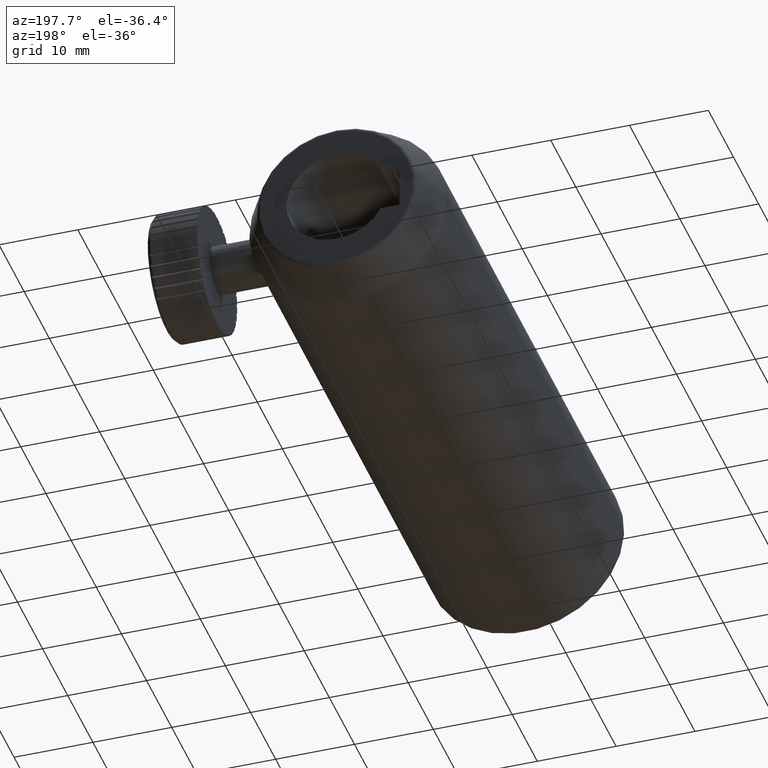
[diagram: clean part render]
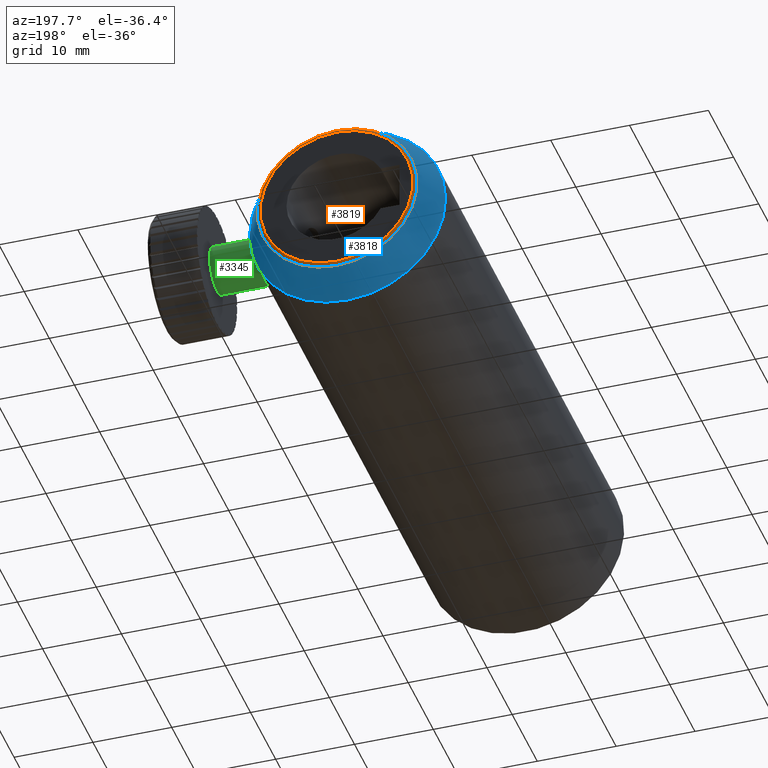
[diagram: same view with three faces highlighted in distinct colors, each labeled with its STEP entity id]
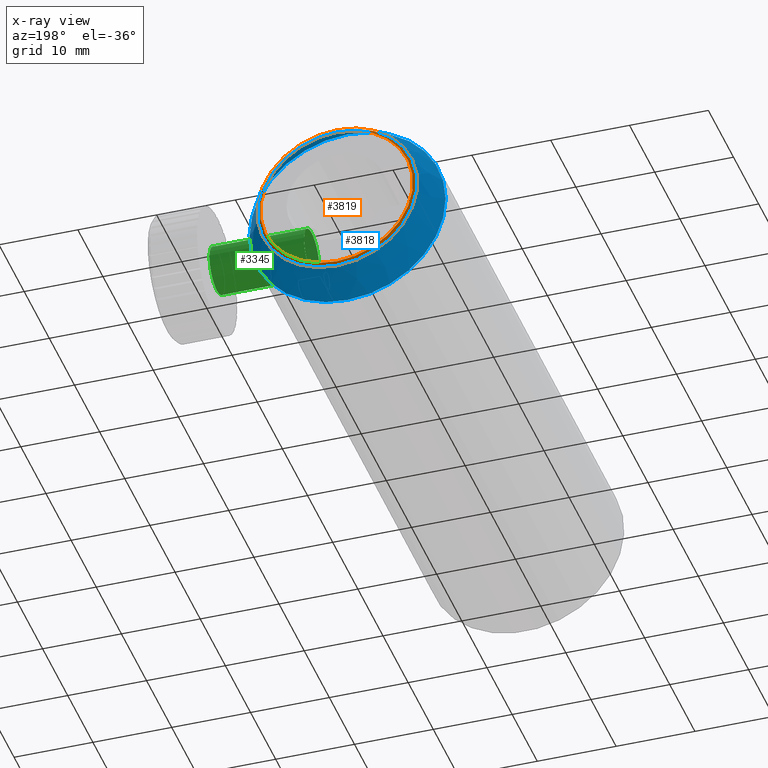
[diagram: x-ray of the same camera — body ghosted, the three highlighted faces saturated]
A machine part, auxiliary view with three faces highlighted in distinct colors.
The next image is the same camera in x-ray (body ghosted, the three faces saturated) — at least one of them is partly hidden behind the body in this view.
Their STEP definitions:

[orange] entity #3819 — the highlighted toroidal blend (fillet) surface has major radius 9.7058 mm and minor (blend) radius 0.5 mm.
#524 = CIRCLE ( 'NONE', #3723, 10.14287696356149300 ) ;
#527 = CIRCLE ( 'NONE', #3724, 9.705798325500721200 ) ;
#1116 = DIRECTION ( 'NONE',  ( 0.0000000000000000000, 1.000000000000000000, 0.0000000000000000000 ) ) ;
#1118 = CARTESIAN_POINT ( 'NONE',  ( -6.149801035848838600, 68.58755540261930200, -3.686287386450715100E-015 ) ) ;
#1120 = DIRECTION ( 'NONE',  ( 0.0000000000000000000, 0.0000000000000000000, 1.000000000000000000 ) ) ;
#1255 = CARTESIAN_POINT ( 'NONE',  ( -6.149801035848838600, 68.83037686820863100, 10.14287696356148900 ) ) ;
#1256 = CARTESIAN_POINT ( 'NONE',  ( -6.149801035848838600, 69.08755540261930200, 9.705798325500717600 ) ) ;
#1819 = ORIENTED_EDGE ( 'NONE', *, *, #2185, .F. ) ;
#1820 = ORIENTED_EDGE ( 'NONE', *, *, #2186, .F. ) ;
#2185 = EDGE_CURVE ( 'NONE', #2569, #2569, #524, .T. ) ;
#2186 = EDGE_CURVE ( 'NONE', #2570, #2570, #527, .T. ) ;
#2532 = FACE_OUTER_BOUND ( 'NONE', #4810, .T. ) ;
#2535 = TOROIDAL_SURFACE ( 'NONE', #2670, 9.705798325500721200, 0.5000000000000000000 ) ;
#2537 = FACE_OUTER_BOUND ( 'NONE', #4809, .T. ) ;
#2569 = VERTEX_POINT ( 'NONE', #1255 ) ;
#2570 = VERTEX_POINT ( 'NONE', #1256 ) ;
#2670 = AXIS2_PLACEMENT_3D ( 'NONE', #1118, #1116, #1120 ) ;
#3723 = AXIS2_PLACEMENT_3D ( 'NONE', #4466, #4467, #4468 ) ;
#3724 = AXIS2_PLACEMENT_3D ( 'NONE', #4470, #4471, #4472 ) ;
#3819 = ADVANCED_FACE ( 'NONE', ( #2532, #2537 ), #2535, .T. ) ;
#4466 = CARTESIAN_POINT ( 'NONE',  ( -6.149801035848838600, 68.83037686820863100, -3.686287386450715100E-015 ) ) ;
#4467 = DIRECTION ( 'NONE',  ( -0.0000000000000000000, -1.000000000000000000, -0.0000000000000000000 ) ) ;
#4468 = DIRECTION ( 'NONE',  ( 0.0000000000000000000, 0.0000000000000000000, 1.000000000000000000 ) ) ;
#4470 = CARTESIAN_POINT ( 'NONE',  ( -6.149801035848838600, 69.08755540261930200, -3.686287386450715100E-015 ) ) ;
#4471 = DIRECTION ( 'NONE',  ( 0.0000000000000000000, 1.000000000000000000, 0.0000000000000000000 ) ) ;
#4472 = DIRECTION ( 'NONE',  ( 0.0000000000000000000, 0.0000000000000000000, 1.000000000000000000 ) ) ;
#4809 = EDGE_LOOP ( 'NONE', ( #1820 ) ) ;
#4810 = EDGE_LOOP ( 'NONE', ( #1819 ) ) ;

[blue] entity #3818 — the highlighted conical surface has half-angle 29.055 deg.
#509 = CIRCLE ( 'NONE', #3722, 12.43707863806077200 ) ;
#524 = CIRCLE ( 'NONE', #3723, 10.14287696356149300 ) ;
#1112 = DIRECTION ( 'NONE',  ( 0.0000000000000000000, 0.0000000000000000000, -1.000000000000000000 ) ) ;
#1114 = CARTESIAN_POINT ( 'NONE',  ( -6.149801035848838600, 69.08755540261930200, -3.686287386450715100E-015 ) ) ;
#1115 = DIRECTION ( 'NONE',  ( 0.0000000000000000000, -1.000000000000000000, 0.0000000000000000000 ) ) ;
#1254 = CARTESIAN_POINT ( 'NONE',  ( -6.149801035848838600, 64.70081385410992400, -12.43707863806077500 ) ) ;
#1255 = CARTESIAN_POINT ( 'NONE',  ( -6.149801035848838600, 68.83037686820863100, 10.14287696356148900 ) ) ;
#1817 = ORIENTED_EDGE ( 'NONE', *, *, #2185, .T. ) ;
#1818 = ORIENTED_EDGE ( 'NONE', *, *, #2184, .T. ) ;
#2184 = EDGE_CURVE ( 'NONE', #2568, #2568, #509, .T. ) ;
#2185 = EDGE_CURVE ( 'NONE', #2569, #2569, #524, .T. ) ;
#2529 = FACE_OUTER_BOUND ( 'NONE', #4807, .T. ) ;
#2536 = FACE_BOUND ( 'NONE', #4808, .T. ) ;
#2541 = CONICAL_SURFACE ( 'NONE', #2667, 10.00000000000000200, 0.5070985043923363900 ) ;
#2568 = VERTEX_POINT ( 'NONE', #1254 ) ;
#2569 = VERTEX_POINT ( 'NONE', #1255 ) ;
#2667 = AXIS2_PLACEMENT_3D ( 'NONE', #1114, #1115, #1112 ) ;
#3722 = AXIS2_PLACEMENT_3D ( 'NONE', #4462, #4463, #4464 ) ;
#3723 = AXIS2_PLACEMENT_3D ( 'NONE', #4466, #4467, #4468 ) ;
#3818 = ADVANCED_FACE ( 'NONE', ( #2536, #2529 ), #2541, .T. ) ;
#4462 = CARTESIAN_POINT ( 'NONE',  ( -6.149801035848838600, 64.70081385410992400, -3.686287386450715100E-015 ) ) ;
#4463 = DIRECTION ( 'NONE',  ( -0.0000000000000000000, 1.000000000000000000, -0.0000000000000000000 ) ) ;
#4464 = DIRECTION ( 'NONE',  ( 0.0000000000000000000, 0.0000000000000000000, -1.000000000000000000 ) ) ;
#4466 = CARTESIAN_POINT ( 'NONE',  ( -6.149801035848838600, 68.83037686820863100, -3.686287386450715100E-015 ) ) ;
#4467 = DIRECTION ( 'NONE',  ( -0.0000000000000000000, -1.000000000000000000, -0.0000000000000000000 ) ) ;
#4468 = DIRECTION ( 'NONE',  ( 0.0000000000000000000, 0.0000000000000000000, 1.000000000000000000 ) ) ;
#4807 = EDGE_LOOP ( 'NONE', ( #1818 ) ) ;
#4808 = EDGE_LOOP ( 'NONE', ( #1817 ) ) ;

[green] entity #3345 — the highlighted cylindrical surface (bore or boss wall) has radius 3 mm, axis along (1, 0, -0).
#813 = DIRECTION ( 'NONE',  ( 0.0000000000000000000, 0.9517029301910032700, 0.3070204108294080600 ) ) ;
#817 = DIRECTION ( 'NONE',  ( 1.000000000000000000, 1.278229234247563200E-017, -4.163336342344335800E-017 ) ) ;
#820 = CARTESIAN_POINT ( 'NONE',  ( 18.60019896415116100, 59.08755540261933000, -8.023096076392732800E-015 ) ) ;
#1257 = CARTESIAN_POINT ( 'NONE',  ( 0.2001989641511568400, 61.94266419319233600, 0.9210612324882175800 ) ) ;
#1258 = CARTESIAN_POINT ( 'NONE',  ( 12.20019896415115700, 61.94266419319233600, 0.9210612324882170300 ) ) ;
#1847 = ORIENTED_EDGE ( 'NONE', *, *, #2251, .T. ) ;
#1849 = ORIENTED_EDGE ( 'NONE', *, *, #2252, .F. ) ;
#2251 = EDGE_CURVE ( 'NONE', #2571, #2571, #3373, .T. ) ;
#2252 = EDGE_CURVE ( 'NONE', #2572, #2572, #3383, .T. ) ;
#2360 = AXIS2_PLACEMENT_3D ( 'NONE', #820, #817, #813 ) ;
#2411 = FACE_OUTER_BOUND ( 'NONE', #4383, .T. ) ;
#2417 = FACE_OUTER_BOUND ( 'NONE', #2816, .T. ) ;
#2419 = CYLINDRICAL_SURFACE ( 'NONE', #2360, 3.000000000000002200 ) ;
#2571 = VERTEX_POINT ( 'NONE', #1257 ) ;
#2572 = VERTEX_POINT ( 'NONE', #1258 ) ;
#2816 = EDGE_LOOP ( 'NONE', ( #1847 ) ) ;
#3091 = CARTESIAN_POINT ( 'NONE',  ( 0.2001989641511568700, 59.08755540261933000, -7.257042189401374200E-015 ) ) ;
#3092 = DIRECTION ( 'NONE',  ( 1.000000000000000000, 1.278229234247563200E-017, -4.163336342344335800E-017 ) ) ;
#3093 = DIRECTION ( 'NONE',  ( -9.035018104045863600E-018, 0.9517029301910032700, 0.3070204108294080600 ) ) ;
#3094 = CARTESIAN_POINT ( 'NONE',  ( 12.20019896415115700, 59.08755540261933000, -7.756642550482694600E-015 ) ) ;
#3095 = DIRECTION ( 'NONE',  ( 1.000000000000000000, 1.278229234247563200E-017, -4.163336342344335800E-017 ) ) ;
#3096 = DIRECTION ( 'NONE',  ( 0.0000000000000000000, 0.9517029301910032700, 0.3070204108294080600 ) ) ;
#3345 = ADVANCED_FACE ( 'NONE', ( #2411, #2417 ), #2419, .T. ) ;
#3373 = CIRCLE ( 'NONE', #3739, 3.000000000000002200 ) ;
#3383 = CIRCLE ( 'NONE', #3740, 3.000000000000002200 ) ;
#3739 = AXIS2_PLACEMENT_3D ( 'NONE', #3091, #3092, #3093 ) ;
#3740 = AXIS2_PLACEMENT_3D ( 'NONE', #3094, #3095, #3096 ) ;
#4383 = EDGE_LOOP ( 'NONE', ( #1849 ) ) ;